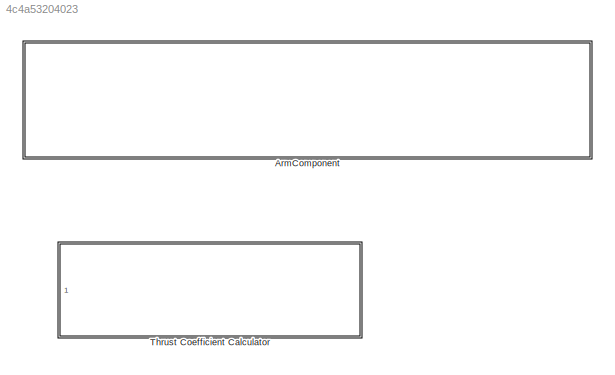
MODEL slx_4c4a53204023
KIND library
CONFIG AbsTol = auto
CONFIG EnableMultiTasking = off
CONFIG FixedStep = auto
CONFIG MaxStep = auto
CONFIG MinStep = auto
CONFIG RelTol = 1e-3
CONFIG SampleTimeConstraint = Unconstrained
CONFIG Solver = VariableStepAuto
CONFIG SolverName = VariableStepAuto
CONFIG StartTime = 0.0
CONFIG StopTime = 10.0
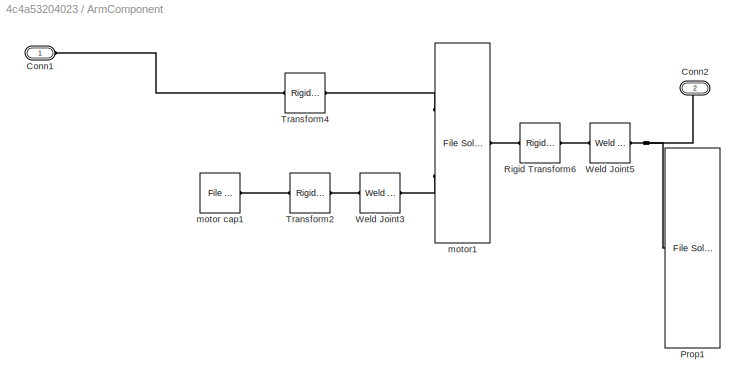
BLOCK [SubSystem] ArmComponent
  Ports = [0, 0, 0, 0, 0, 1, 1]
  RequestExecContextInheritance = off
BLOCK [PMIOPort] ArmComponent/Conn1
  Side = Left
BLOCK [PMIOPort] ArmComponent/Conn2
  Port = 2
  Side = Right
BLOCK [Reference] ArmComponent/Prop1  REF=sm_lib/Body Elements/File Solid
  Ports = [0, 0, 0, 0, 0, 0, 1]
  SourceBlock = sm_lib/Body Elements/File Solid
  SourceProductBaseCode = MS
  SourceType = File Solid
BLOCK [Reference] ArmComponent/Rigid Transform6  REF=sm_lib/Frames and
Transforms/Rigid
Transform
  Ports = [0, 0, 0, 0, 0, 1, 1]
  SourceBlock = sm_lib/Frames and\nTransforms/Rigid\nTransform
  SourceProductBaseCode = MS
  SourceType = Rigid\nTransform
BLOCK [Reference] ArmComponent/Transform2  REF=sm_lib/Frames and
Transforms/Rigid
Transform
  Ports = [0, 0, 0, 0, 0, 1, 1]
  SourceBlock = sm_lib/Frames and\nTransforms/Rigid\nTransform
  SourceProductBaseCode = MS
  SourceType = Rigid\nTransform
BLOCK [Reference] ArmComponent/Transform4  REF=sm_lib/Frames and
Transforms/Rigid
Transform
  Ports = [0, 0, 0, 0, 0, 1, 1]
  SourceBlock = sm_lib/Frames and\nTransforms/Rigid\nTransform
  SourceProductBaseCode = MS
  SourceType = Rigid\nTransform
BLOCK [Reference] ArmComponent/Weld Joint3  REF=sm_lib/Joints/Weld Joint
  Ports = [0, 0, 0, 0, 0, 1, 1]
  SourceBlock = sm_lib/Joints/Weld Joint
  SourceProductBaseCode = MS
  SourceType = Weld Joint
BLOCK [Reference] ArmComponent/Weld Joint5  REF=sm_lib/Joints/Weld Joint
  Ports = [0, 0, 0, 0, 0, 1, 1]
  SourceBlock = sm_lib/Joints/Weld Joint
  SourceProductBaseCode = MS
  SourceType = Weld Joint
BLOCK [Reference] ArmComponent/motor cap1  REF=sm_lib/Body Elements/File Solid
  Ports = [0, 0, 0, 0, 0, 0, 1]
  SourceBlock = sm_lib/Body Elements/File Solid
  SourceProductBaseCode = MS
  SourceType = File Solid
BLOCK [Reference] ArmComponent/motor1  REF=sm_lib/Body Elements/File Solid
  Ports = [0, 0, 0, 0, 0, 2, 1]
  SourceBlock = sm_lib/Body Elements/File Solid
  SourceProductBaseCode = MS
  SourceType = File Solid
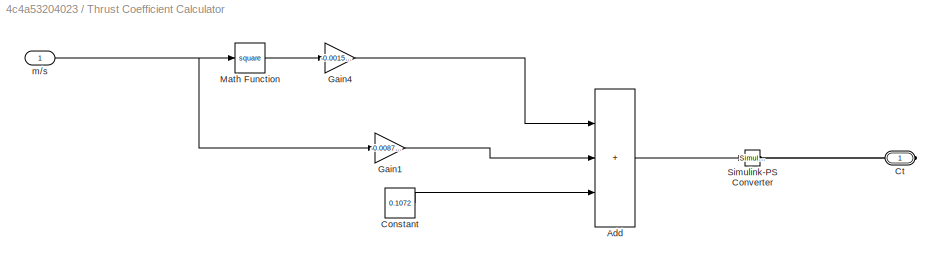
BLOCK [SubSystem] Thrust Coefficient Calculator
  Ports = [1, 0, 0, 0, 0, 0, 1]
  RequestExecContextInheritance = off
BLOCK [Sum] Thrust Coefficient Calculator/Add
  IconShape = rectangular
  Inputs = +++
  Ports = [3, 1]
BLOCK [Constant] Thrust Coefficient Calculator/Constant
  Value = 0.1072
BLOCK [PMIOPort] Thrust Coefficient Calculator/Ct
  NameLocation = top
  Side = Right
BLOCK [Gain] Thrust Coefficient Calculator/Gain1
  Gain = -0.008716
BLOCK [Gain] Thrust Coefficient Calculator/Gain4
  Gain = -0.001589
BLOCK [Math] Thrust Coefficient Calculator/Math Function
  Operator = square
  Ports = [1, 1]
BLOCK [Reference] Thrust Coefficient Calculator/Simulink-PS Converter  REF=nesl_utility/Simulink-PS
Converter
  Ports = [1, 0, 0, 0, 0, 0, 1]
  SourceBlock = nesl_utility/Simulink-PS\nConverter
  SourceProductBaseCode = SS
  SourceType = Simulink-PS\nConverter
BLOCK [Inport] Thrust Coefficient Calculator/m//s
LINE Thrust Coefficient Calculator/Add:1 -> Thrust Coefficient Calculator/Simulink-PS Converter:1
LINE Thrust Coefficient Calculator/Constant:1 -> Thrust Coefficient Calculator/Add:3
LINE Thrust Coefficient Calculator/Gain1:1 -> Thrust Coefficient Calculator/Add:2
LINE Thrust Coefficient Calculator/Gain4:1 -> Thrust Coefficient Calculator/Add:1
LINE Thrust Coefficient Calculator/Math Function:1 -> Thrust Coefficient Calculator/Gain4:1
NET Thrust Coefficient Calculator/m//s:1 -> Thrust Coefficient Calculator/Gain1:1, Thrust Coefficient Calculator/Math Function:1
PLINE ArmComponent/Conn1:RConn1 -- ArmComponent/Transform4:LConn1
PNET net1: ArmComponent/Conn2:RConn1 -- ArmComponent/Prop1:RConn1 -- ArmComponent/Weld Joint5:RConn1
PLINE ArmComponent/Rigid Transform6:LConn1 -- ArmComponent/motor1:RConn1
PLINE ArmComponent/Rigid Transform6:RConn1 -- ArmComponent/Weld Joint5:LConn1
PLINE ArmComponent/Transform2:LConn1 -- ArmComponent/Weld Joint3:LConn1
PLINE ArmComponent/Transform2:RConn1 -- ArmComponent/motor cap1:RConn1
PLINE ArmComponent/Transform4:RConn1 -- ArmComponent/motor1:LConn1
PLINE ArmComponent/Weld Joint3:RConn1 -- ArmComponent/motor1:LConn2
PLINE Thrust Coefficient Calculator/Ct:RConn1 -- Thrust Coefficient Calculator/Simulink-PS Converter:RConn1
note: NET lines group one-source signal fan-out (src -> all destinations, sorted); 1:1 wires keep LINE; PNET lines group multi-terminal physical nets as a canonical sorted terminal list (undirected conserving connections); 2-terminal nets keep the pairwise PLINE form
